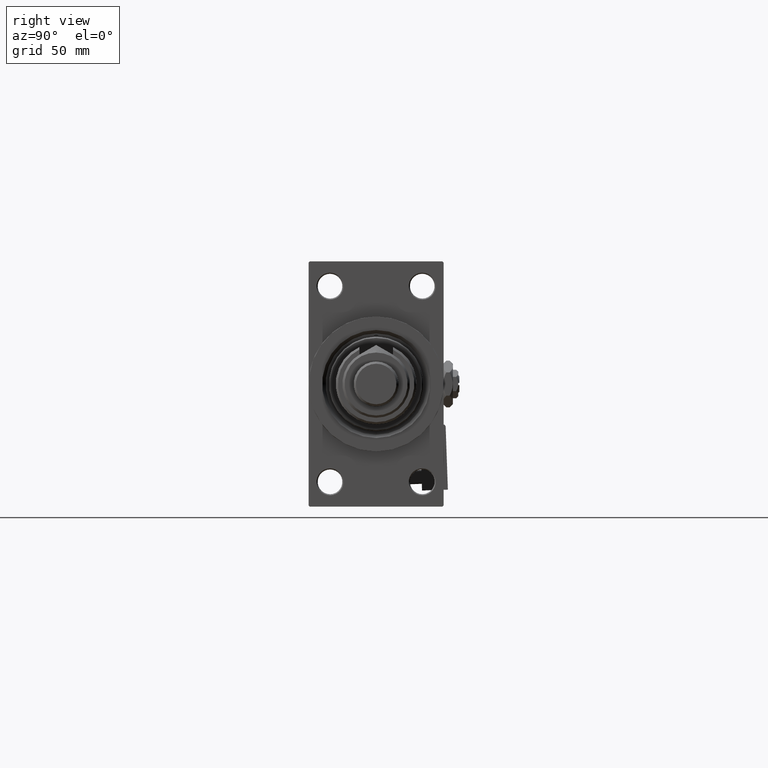
[diagram: clean part render]
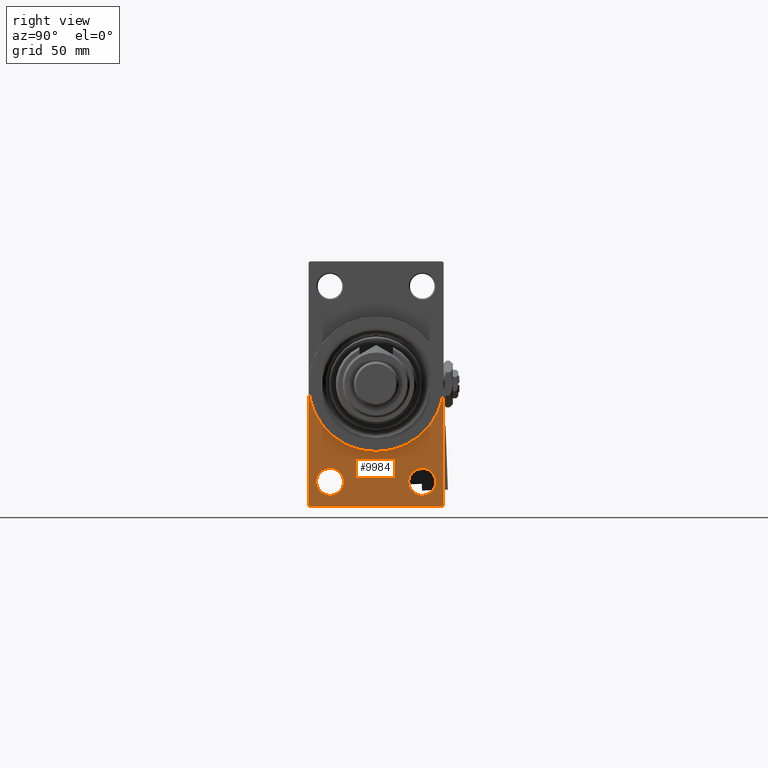
[diagram: same view with one face highlighted and labeled with its STEP entity id]
A machine part, right view. The second image highlights one B-rep face of the part: STEP entity #9984.
In plain terms, the highlighted planar face has unit normal (-1, 0, 0).
Its self-contained STEP definition (entity closure, byte-faithful):
#265 = DIRECTION ( 'NONE',  ( 0.000000000000000000, 0.000000000000000000, -1.000000000000000000 ) ) ;
#483 = CARTESIAN_POINT ( 'NONE',  ( 167.9999999999999716, 30.00000000000000000, 0.000000000000000000 ) ) ;
#833 = DIRECTION ( 'NONE',  ( 0.000000000000000000, 0.000000000000000000, 1.000000000000000000 ) ) ;
#1383 = DIRECTION ( 'NONE',  ( -0.000000000000000000, 0.000000000000000000, 1.000000000000000000 ) ) ;
#1652 = PLANE ( 'NONE',  #26559 ) ;
#2424 = CARTESIAN_POINT ( 'NONE',  ( 167.9999999999999716, 29.99999999999999645, -54.49999999999999289 ) ) ;
#2561 = LINE ( 'NONE', #23560, #36092 ) ;
#3604 = FACE_BOUND ( 'NONE', #35450, .T. ) ;
#3646 = VERTEX_POINT ( 'NONE', #4904 ) ;
#4904 = CARTESIAN_POINT ( 'NONE',  ( 167.9999999999999716, -29.50000000000000355, -54.50000000000000000 ) ) ;
#5227 = DIRECTION ( 'NONE',  ( -1.000000000000000000, 0.000000000000000000, -0.000000000000000000 ) ) ;
#6875 = CIRCLE ( 'NONE', #27192, 5.999999999999977796 ) ;
#7116 = DIRECTION ( 'NONE',  ( 0.000000000000000000, -1.000000000000000000, -1.156482317317871478E-16 ) ) ;
#7206 = ORIENTED_EDGE ( 'NONE', *, *, #27184, .T. ) ;
#7904 = AXIS2_PLACEMENT_3D ( 'NONE', #21268, #50789, #265 ) ;
#8598 = ORIENTED_EDGE ( 'NONE', *, *, #15014, .T. ) ;
#9984 = ADVANCED_FACE ( 'NONE', ( #24615, #3604, #42809 ), #1652, .F. ) ;
#10427 = EDGE_LOOP ( 'NONE', ( #25626, #39815, #39020, #28506, #51223, #10576, #53946 ) ) ;
#10537 = DIRECTION ( 'NONE',  ( 1.000000000000000000, 0.000000000000000000, 0.000000000000000000 ) ) ;
#10576 = ORIENTED_EDGE ( 'NONE', *, *, #44993, .F. ) ;
#10579 = CIRCLE ( 'NONE', #7904, 30.00000000000000000 ) ;
#10774 = LINE ( 'NONE', #31244, #17323 ) ;
#11525 = LINE ( 'NONE', #2424, #29785 ) ;
#11659 = VERTEX_POINT ( 'NONE', #32596 ) ;
#11810 = DIRECTION ( 'NONE',  ( -1.000000000000000000, 0.000000000000000000, -0.000000000000000000 ) ) ;
#13423 = CIRCLE ( 'NONE', #52221, 5.999999999999977796 ) ;
#15014 = EDGE_CURVE ( 'NONE', #51679, #15513, #23274, .T. ) ;
#15513 = VERTEX_POINT ( 'NONE', #18475 ) ;
#17063 = CARTESIAN_POINT ( 'NONE',  ( 167.9999999999999716, 29.49999999999999645, -54.49999999999999289 ) ) ;
#17323 = VECTOR ( 'NONE', #43938, 1000.000000000000000 ) ;
#17747 = CARTESIAN_POINT ( 'NONE',  ( 167.9999999999999716, -30.00000000000000000, 54.50000000000000000 ) ) ;
#17904 = ORIENTED_EDGE ( 'NONE', *, *, #39065, .T. ) ;
#18475 = CARTESIAN_POINT ( 'NONE',  ( 167.9999999999999716, 20.50000000000000000, -37.50000000000002132 ) ) ;
#19904 = EDGE_CURVE ( 'NONE', #48770, #3646, #10774, .T. ) ;
#19966 = DIRECTION ( 'NONE',  ( 0.000000000000000000, 0.000000000000000000, -1.000000000000000000 ) ) ;
#21268 = CARTESIAN_POINT ( 'NONE',  ( 167.9999999999999716, 0.000000000000000000, 0.000000000000000000 ) ) ;
#23274 = CIRCLE ( 'NONE', #53271, 5.999999999999977796 ) ;
#23560 = CARTESIAN_POINT ( 'NONE',  ( 167.9999999999999716, 29.99999999999999645, 54.49999999999999289 ) ) ;
#24099 = EDGE_CURVE ( 'NONE', #24131, #3646, #11525, .T. ) ;
#24131 = VERTEX_POINT ( 'NONE', #17063 ) ;
#24281 = VERTEX_POINT ( 'NONE', #483 ) ;
#24396 = EDGE_LOOP ( 'NONE', ( #17904, #7206 ) ) ;
#24615 = FACE_BOUND ( 'NONE', #24396, .T. ) ;
#25626 = ORIENTED_EDGE ( 'NONE', *, *, #29867, .T. ) ;
#26284 = AXIS2_PLACEMENT_3D ( 'NONE', #38666, #5227, #833 ) ;
#26559 = AXIS2_PLACEMENT_3D ( 'NONE', #30927, #38949, #1383 ) ;
#26992 = VERTEX_POINT ( 'NONE', #39004 ) ;
#27130 = CARTESIAN_POINT ( 'NONE',  ( 167.9999999999999716, 0.000000000000000000, 0.000000000000000000 ) ) ;
#27184 = EDGE_CURVE ( 'NONE', #51359, #26992, #34246, .T. ) ;
#27192 = AXIS2_PLACEMENT_3D ( 'NONE', #49667, #11810, #28659 ) ;
#28346 = CARTESIAN_POINT ( 'NONE',  ( 167.9999999999999716, 20.50000000000000000, -43.50000000000000000 ) ) ;
#28506 = ORIENTED_EDGE ( 'NONE', *, *, #53484, .T. ) ;
#28550 = DIRECTION ( 'NONE',  ( 0.000000000000000000, 0.000000000000000000, 1.000000000000000000 ) ) ;
#28659 = DIRECTION ( 'NONE',  ( 0.000000000000000000, 0.000000000000000000, 1.000000000000000000 ) ) ;
#29785 = VECTOR ( 'NONE', #7116, 1000.000000000000000 ) ;
#29867 = EDGE_CURVE ( 'NONE', #52867, #48770, #30415, .T. ) ;
#30415 = LINE ( 'NONE', #17747, #49350 ) ;
#30927 = CARTESIAN_POINT ( 'NONE',  ( 167.9999999999999716, 0.000000000000000000, 0.000000000000000000 ) ) ;
#31244 = CARTESIAN_POINT ( 'NONE',  ( 167.9999999999999716, -29.50000000000000355, -54.50000000000000000 ) ) ;
#31278 = DIRECTION ( 'NONE',  ( 0.000000000000000000, 0.000000000000000000, -1.000000000000000000 ) ) ;
#31670 = DIRECTION ( 'NONE',  ( 0.000000000000000000, 0.000000000000000000, 1.000000000000000000 ) ) ;
#32596 = CARTESIAN_POINT ( 'NONE',  ( 167.9999999999999716, 29.99999999999999645, -53.99999999999999289 ) ) ;
#34246 = CIRCLE ( 'NONE', #26284, 5.999999999999977796 ) ;
#35450 = EDGE_LOOP ( 'NONE', ( #8598, #51846 ) ) ;
#36092 = VECTOR ( 'NONE', #19966, 1000.000000000000000 ) ;
#37767 = CARTESIAN_POINT ( 'NONE',  ( 167.9999999999999716, 3.673940397442059178E-15, -30.00000000000000000 ) ) ;
#38323 = CARTESIAN_POINT ( 'NONE',  ( 167.9999999999999716, 29.99999999999999645, -53.99999999999999289 ) ) ;
#38666 = CARTESIAN_POINT ( 'NONE',  ( 167.9999999999999716, -20.50000000000000000, -43.50000000000000000 ) ) ;
#38949 = DIRECTION ( 'NONE',  ( -1.000000000000000000, 0.000000000000000000, -0.000000000000000000 ) ) ;
#39004 = CARTESIAN_POINT ( 'NONE',  ( 167.9999999999999716, -20.50000000000000000, -49.49999999999997158 ) ) ;
#39020 = ORIENTED_EDGE ( 'NONE', *, *, #24099, .F. ) ;
#39065 = EDGE_CURVE ( 'NONE', #26992, #51359, #6875, .T. ) ;
#39815 = ORIENTED_EDGE ( 'NONE', *, *, #19904, .T. ) ;
#39993 = CARTESIAN_POINT ( 'NONE',  ( 167.9999999999999716, 20.50000000000000000, -49.49999999999997158 ) ) ;
#41059 = DIRECTION ( 'NONE',  ( -1.000000000000000000, 0.000000000000000000, -0.000000000000000000 ) ) ;
#41643 = EDGE_CURVE ( 'NONE', #52867, #52585, #49225, .T. ) ;
#42809 = FACE_OUTER_BOUND ( 'NONE', #10427, .T. ) ;
#43938 = DIRECTION ( 'NONE',  ( 0.000000000000000000, 0.7071067811865352493, -0.7071067811865597852 ) ) ;
#44340 = EDGE_CURVE ( 'NONE', #24281, #11659, #2561, .T. ) ;
#44596 = DIRECTION ( 'NONE',  ( -1.000000000000000000, 0.000000000000000000, -0.000000000000000000 ) ) ;
#44852 = CARTESIAN_POINT ( 'NONE',  ( 167.9999999999999716, -30.00000000000000000, -53.99999999999998579 ) ) ;
#44993 = EDGE_CURVE ( 'NONE', #52585, #24281, #10579, .T. ) ;
#47174 = CARTESIAN_POINT ( 'NONE',  ( 167.9999999999999716, -20.50000000000000000, -37.50000000000002132 ) ) ;
#48770 = VERTEX_POINT ( 'NONE', #44852 ) ;
#49225 = CIRCLE ( 'NONE', #50224, 30.00000000000000000 ) ;
#49350 = VECTOR ( 'NONE', #51404, 1000.000000000000000 ) ;
#49616 = VECTOR ( 'NONE', #51004, 1000.000000000000114 ) ;
#49667 = CARTESIAN_POINT ( 'NONE',  ( 167.9999999999999716, -20.50000000000000000, -43.50000000000000000 ) ) ;
#49692 = EDGE_CURVE ( 'NONE', #15513, #51679, #13423, .T. ) ;
#50224 = AXIS2_PLACEMENT_3D ( 'NONE', #27130, #10537, #31278 ) ;
#50789 = DIRECTION ( 'NONE',  ( 1.000000000000000000, 0.000000000000000000, 0.000000000000000000 ) ) ;
#51004 = DIRECTION ( 'NONE',  ( -0.000000000000000000, 0.7071067811865474617, 0.7071067811865474617 ) ) ;
#51223 = ORIENTED_EDGE ( 'NONE', *, *, #44340, .F. ) ;
#51359 = VERTEX_POINT ( 'NONE', #47174 ) ;
#51404 = DIRECTION ( 'NONE',  ( 0.000000000000000000, 0.000000000000000000, -1.000000000000000000 ) ) ;
#51679 = VERTEX_POINT ( 'NONE', #39993 ) ;
#51846 = ORIENTED_EDGE ( 'NONE', *, *, #49692, .T. ) ;
#52221 = AXIS2_PLACEMENT_3D ( 'NONE', #28346, #41059, #31670 ) ;
#52585 = VERTEX_POINT ( 'NONE', #37767 ) ;
#52867 = VERTEX_POINT ( 'NONE', #54272 ) ;
#52886 = CARTESIAN_POINT ( 'NONE',  ( 167.9999999999999716, 20.50000000000000000, -43.50000000000000000 ) ) ;
#53271 = AXIS2_PLACEMENT_3D ( 'NONE', #52886, #44596, #28550 ) ;
#53484 = EDGE_CURVE ( 'NONE', #24131, #11659, #54066, .T. ) ;
#53946 = ORIENTED_EDGE ( 'NONE', *, *, #41643, .F. ) ;
#54066 = LINE ( 'NONE', #38323, #49616 ) ;
#54272 = CARTESIAN_POINT ( 'NONE',  ( 167.9999999999999716, -30.00000000000000000, 0.000000000000000000 ) ) ;